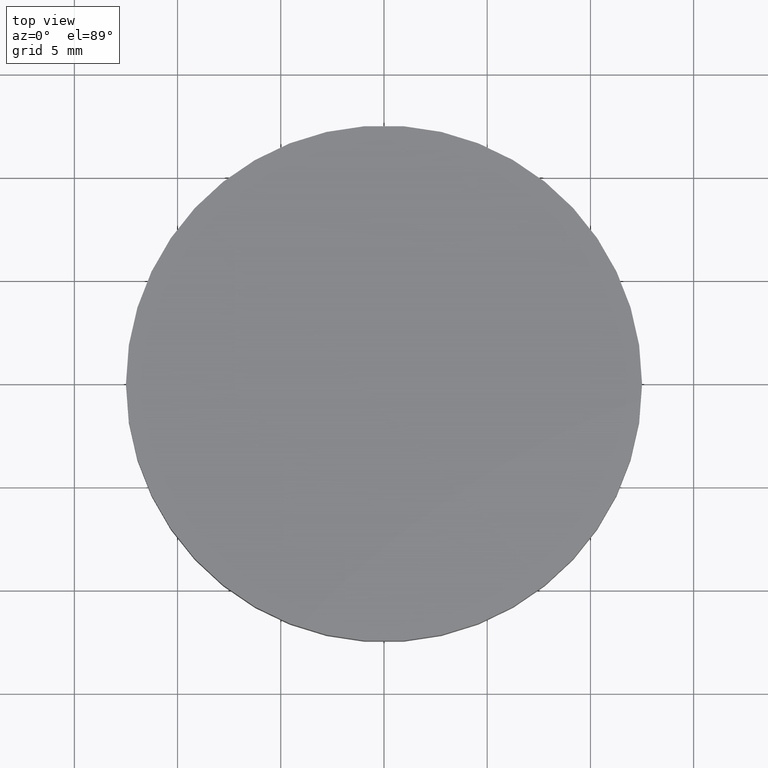
[diagram: clean part render]
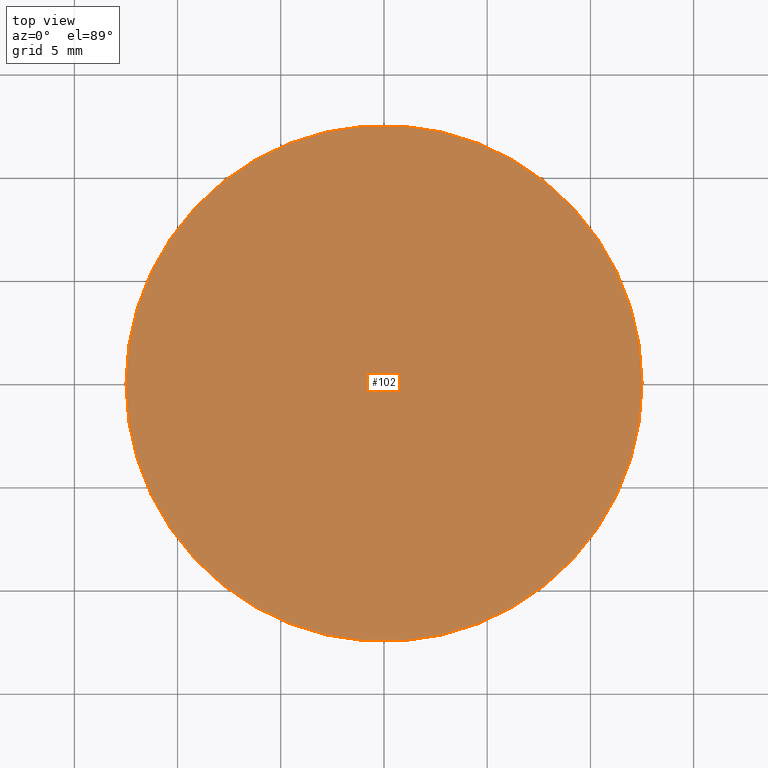
[diagram: same view with one face highlighted and labeled with its STEP entity id]
A machine part, top view. The second image highlights one B-rep face of the part: STEP entity #102.
In plain terms, the highlighted planar face has unit normal (0, 0, 1).
Its self-contained STEP definition (entity closure, byte-faithful):
#5 = PLANE ( 'NONE',  #99 ) ;
#9 = CIRCLE ( 'NONE', #84, 12.50000000000000000 ) ;
#22 = DIRECTION ( 'NONE',  ( 0.0000000000000000000, 0.0000000000000000000, 1.000000000000000000 ) ) ;
#31 = CARTESIAN_POINT ( 'NONE',  ( 0.0000000000000000000, 0.0000000000000000000, 3.000000000000000000 ) ) ;
#41 = FACE_OUTER_BOUND ( 'NONE', #116, .T. ) ;
#45 = ORIENTED_EDGE ( 'NONE', *, *, #128, .T. ) ;
#50 = DIRECTION ( 'NONE',  ( 1.000000000000000000, 0.0000000000000000000, 0.0000000000000000000 ) ) ;
#57 = AXIS2_PLACEMENT_3D ( 'NONE', #130, #122, #50 ) ;
#62 = DIRECTION ( 'NONE',  ( 1.000000000000000000, 0.0000000000000000000, 0.0000000000000000000 ) ) ;
#64 = DIRECTION ( 'NONE',  ( 0.0000000000000000000, 0.0000000000000000000, 1.000000000000000000 ) ) ;
#71 = CARTESIAN_POINT ( 'NONE',  ( -12.50000000000000000, 0.0000000000000000000, 3.000000000000000000 ) ) ;
#73 = CARTESIAN_POINT ( 'NONE',  ( 12.50000000000000000, 1.530808498934191500E-015, 3.000000000000000000 ) ) ;
#76 = ORIENTED_EDGE ( 'NONE', *, *, #80, .T. ) ;
#80 = EDGE_CURVE ( 'NONE', #85, #110, #131, .T. ) ;
#84 = AXIS2_PLACEMENT_3D ( 'NONE', #93, #22, #62 ) ;
#85 = VERTEX_POINT ( 'NONE', #71 ) ;
#93 = CARTESIAN_POINT ( 'NONE',  ( 0.0000000000000000000, 0.0000000000000000000, 3.000000000000000000 ) ) ;
#99 = AXIS2_PLACEMENT_3D ( 'NONE', #31, #64, #138 ) ;
#102 = ADVANCED_FACE ( 'NONE', ( #41 ), #5, .T. ) ;
#110 = VERTEX_POINT ( 'NONE', #73 ) ;
#116 = EDGE_LOOP ( 'NONE', ( #76, #45 ) ) ;
#122 = DIRECTION ( 'NONE',  ( 0.0000000000000000000, 0.0000000000000000000, 1.000000000000000000 ) ) ;
#128 = EDGE_CURVE ( 'NONE', #110, #85, #9, .T. ) ;
#130 = CARTESIAN_POINT ( 'NONE',  ( 0.0000000000000000000, 0.0000000000000000000, 3.000000000000000000 ) ) ;
#131 = CIRCLE ( 'NONE', #57, 12.50000000000000000 ) ;
#138 = DIRECTION ( 'NONE',  ( 1.000000000000000000, 0.0000000000000000000, -0.0000000000000000000 ) ) ;